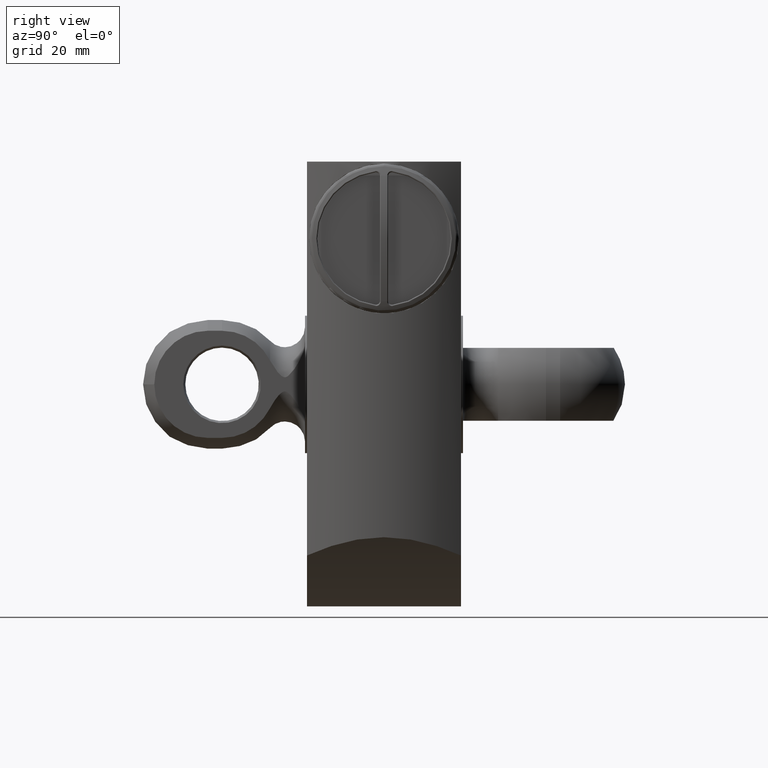
[diagram: clean part render]
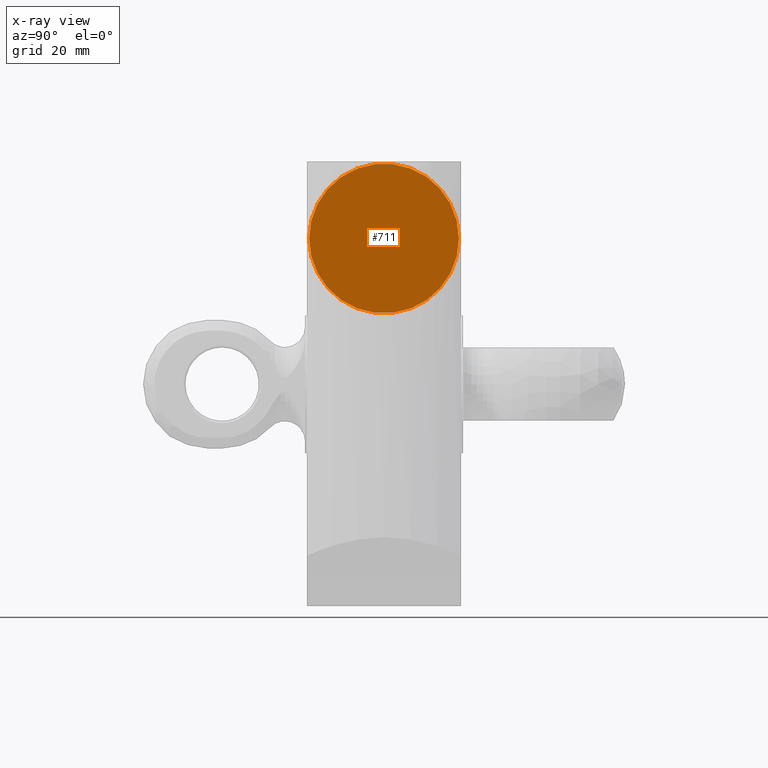
[diagram: x-ray — body ghosted, one internal face saturated and labeled with its STEP entity id]
A machine part, right view, then the same camera in x-ray: the body is ghosted and one INTERNAL B-rep face — a face not visible from any outside direction — is saturated and labeled: STEP entity #711.
In plain terms, the highlighted planar face has unit normal (-1, 0, -0).
Its self-contained STEP definition (entity closure, byte-faithful):
#69=PLANE('',#825);
#103=FACE_OUTER_BOUND('',#149,.T.);
#149=EDGE_LOOP('',(#596,#597));
#267=CIRCLE('',#823,18.5);
#268=CIRCLE('',#824,18.5);
#335=VERTEX_POINT('',#1507);
#336=VERTEX_POINT('',#1508);
#426=EDGE_CURVE('',#335,#336,#267,.T.);
#427=EDGE_CURVE('',#336,#335,#268,.T.);
#596=ORIENTED_EDGE('',*,*,#426,.T.);
#597=ORIENTED_EDGE('',*,*,#427,.T.);
#711=ADVANCED_FACE('',(#103),#69,.T.);
#823=AXIS2_PLACEMENT_3D('',#1509,#1007,#1008);
#824=AXIS2_PLACEMENT_3D('',#1510,#1009,#1010);
#825=AXIS2_PLACEMENT_3D('',#1512,#1012,#1013);
#1007=DIRECTION('center_axis',(0.,-1.,0.));
#1008=DIRECTION('ref_axis',(1.,0.,0.));
#1009=DIRECTION('center_axis',(0.,-1.,0.));
#1010=DIRECTION('ref_axis',(1.,0.,0.));
#1012=DIRECTION('center_axis',(0.,-1.,0.));
#1013=DIRECTION('ref_axis',(0.,0.,-1.));
#1507=CARTESIAN_POINT('',(18.5,0.,0.));
#1508=CARTESIAN_POINT('',(-18.5,0.,-2.2655965784226E-15));
#1509=CARTESIAN_POINT('Origin',(0.,0.,0.));
#1510=CARTESIAN_POINT('Origin',(0.,0.,0.));
#1512=CARTESIAN_POINT('Origin',(0.,0.,0.));